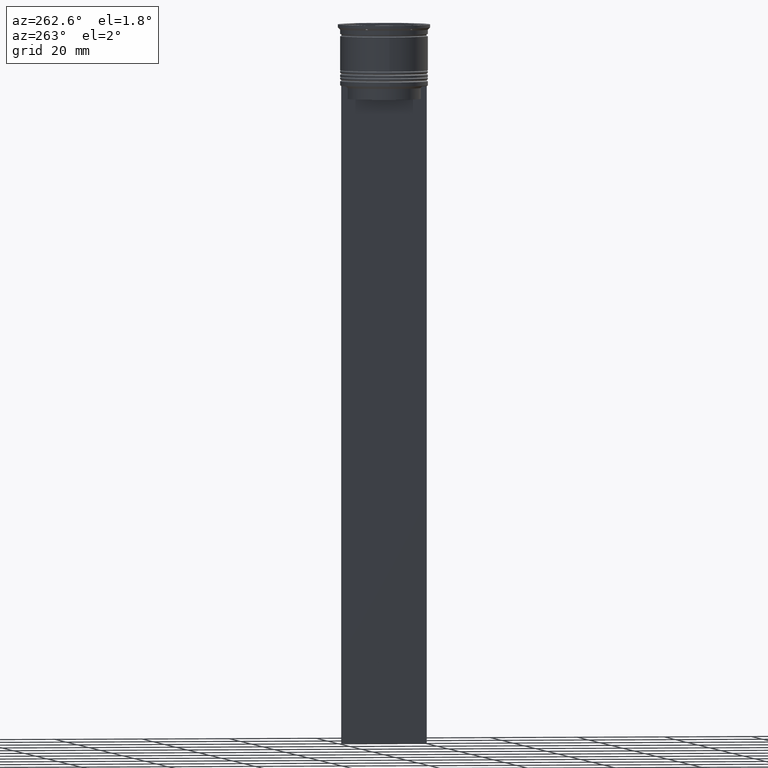
[diagram: clean part render]
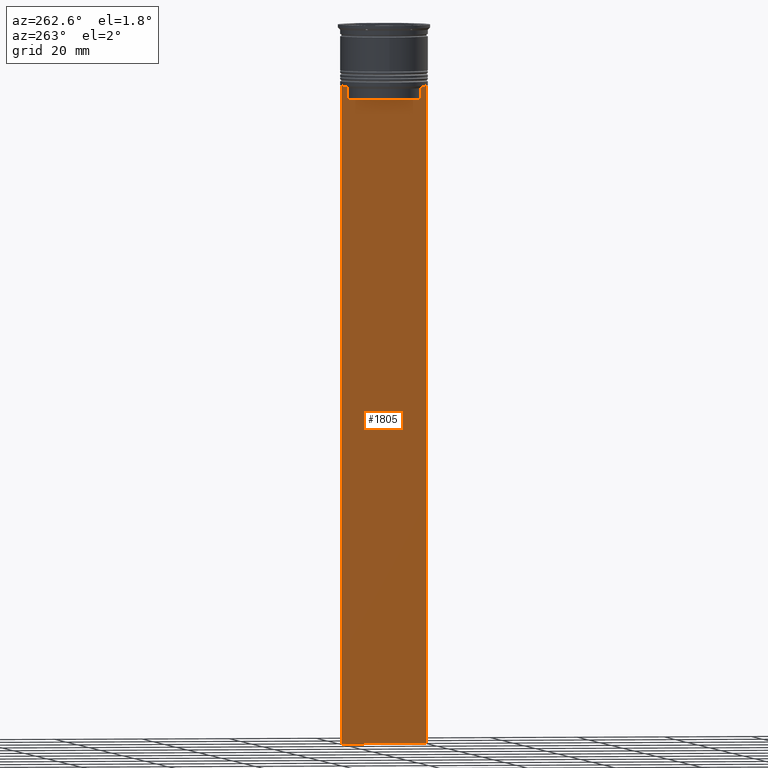
[diagram: same view with one face highlighted and labeled with its STEP entity id]
A machine part, auxiliary view. The second image highlights one B-rep face of the part: STEP entity #1805.
In plain terms, the highlighted planar face has unit normal (-1, 0, 0).
Its self-contained STEP definition (entity closure, byte-faithful):
#22 = VECTOR ( 'NONE', #1613, 1000.000000000000000 ) ;
#34 = VERTEX_POINT ( 'NONE', #1187 ) ;
#68 = FACE_OUTER_BOUND ( 'NONE', #2414, .T. ) ;
#70 = VECTOR ( 'NONE', #1331, 1000.000000000000000 ) ;
#124 = ORIENTED_EDGE ( 'NONE', *, *, #460, .F. ) ;
#164 = EDGE_CURVE ( 'NONE', #973, #478, #1238, .T. ) ;
#175 = EDGE_CURVE ( 'NONE', #34, #381, #829, .T. ) ;
#180 = VERTEX_POINT ( 'NONE', #2435 ) ;
#204 = CARTESIAN_POINT ( 'NONE',  ( -0.5000000000000001110, 9.750000000000001776, 5.525624189766635830 ) ) ;
#215 = EDGE_CURVE ( 'NONE', #381, #1622, #794, .T. ) ;
#239 = PLANE ( 'NONE',  #903 ) ;
#244 = CARTESIAN_POINT ( 'NONE',  ( -0.5000000000000001110, 8.385105843100616241, 0.000000000000000000 ) ) ;
#284 = CARTESIAN_POINT ( 'NONE',  ( -0.5000000000000001110, -8.385105843100616241, -14.50000000000000000 ) ) ;
#321 = CARTESIAN_POINT ( 'NONE',  ( -0.5000000000000001110, -8.385105843100616241, -17.00000000000000000 ) ) ;
#324 = CARTESIAN_POINT ( 'NONE',  ( -0.5000000000000001110, 8.552060201981381837, -14.33334167021640226 ) ) ;
#357 = VECTOR ( 'NONE', #1193, 1000.000000000000000 ) ;
#381 = VERTEX_POINT ( 'NONE', #2165 ) ;
#421 = DIRECTION ( 'NONE',  ( 0.000000000000000000, -1.000000000000000000, 0.000000000000000000 ) ) ;
#432 = B_SPLINE_CURVE_WITH_KNOTS ( 'NONE', 3,
 ( #669, #2482, #1674, #1497 ),
 .UNSPECIFIED., .F., .F.,
 ( 4, 4 ),
 ( 0.03898465126933130243, 0.03969388910599658260 ),
 .UNSPECIFIED. ) ;
#451 = CARTESIAN_POINT ( 'NONE',  ( -0.5000000000000001110, -9.749999999999998224, 5.525624189766635830 ) ) ;
#460 = EDGE_CURVE ( 'NONE', #478, #637, #1398, .T. ) ;
#478 = VERTEX_POINT ( 'NONE', #2396 ) ;
#512 = EDGE_CURVE ( 'NONE', #682, #835, #800, .T. ) ;
#619 = DIRECTION ( 'NONE',  ( 0.000000000000000000, 0.000000000000000000, -1.000000000000000000 ) ) ;
#637 = VERTEX_POINT ( 'NONE', #885 ) ;
#669 = CARTESIAN_POINT ( 'NONE',  ( -0.5000000000000001110, -8.385105843100616241, -14.50000000000000000 ) ) ;
#682 = VERTEX_POINT ( 'NONE', #2278 ) ;
#695 = CARTESIAN_POINT ( 'NONE',  ( -0.5000000000000001110, 8.385105843100616241, -14.50000000000000000 ) ) ;
#759 = ORIENTED_EDGE ( 'NONE', *, *, #1806, .F. ) ;
#789 = DIRECTION ( 'NONE',  ( 0.000000000000000000, 0.000000000000000000, -1.000000000000000000 ) ) ;
#794 = B_SPLINE_CURVE_WITH_KNOTS ( 'NONE', 3,
 ( #2459, #866, #324, #1900 ),
 .UNSPECIFIED., .F., .F.,
 ( 4, 4 ),
 ( 0.01511546479386908018, 0.01582316445439079997 ),
 .UNSPECIFIED. ) ;
#800 = LINE ( 'NONE', #1809, #1328 ) ;
#814 = CARTESIAN_POINT ( 'NONE',  ( -0.5000000000000001110, -9.749999999999998224, -14.00000000000000178 ) ) ;
#829 = LINE ( 'NONE', #814, #2101 ) ;
#835 = VERTEX_POINT ( 'NONE', #321 ) ;
#866 = CARTESIAN_POINT ( 'NONE',  ( -0.5000000000000001110, 8.719005771582351016, -14.16667453442324742 ) ) ;
#875 = ORIENTED_EDGE ( 'NONE', *, *, #512, .F. ) ;
#883 = EDGE_CURVE ( 'NONE', #835, #2405, #2551, .T. ) ;
#885 = CARTESIAN_POINT ( 'NONE',  ( -0.5000000000000001110, -9.749999999999998224, -163.9999999999999716 ) ) ;
#903 = AXIS2_PLACEMENT_3D ( 'NONE', #451, #1430, #1440 ) ;
#959 = ORIENTED_EDGE ( 'NONE', *, *, #215, .F. ) ;
#973 = VERTEX_POINT ( 'NONE', #993 ) ;
#993 = CARTESIAN_POINT ( 'NONE',  ( -0.5000000000000001110, -8.885943956609230199, -14.00000000000000178 ) ) ;
#1043 = DIRECTION ( 'NONE',  ( 0.000000000000000000, -1.000000000000000000, 0.000000000000000000 ) ) ;
#1053 = EDGE_CURVE ( 'NONE', #1622, #682, #1249, .T. ) ;
#1086 = EDGE_CURVE ( 'NONE', #2405, #973, #432, .T. ) ;
#1166 = ORIENTED_EDGE ( 'NONE', *, *, #175, .F. ) ;
#1187 = CARTESIAN_POINT ( 'NONE',  ( -0.5000000000000001110, 9.749999999999998224, -14.00000000000000178 ) ) ;
#1190 = LINE ( 'NONE', #204, #1911 ) ;
#1193 = DIRECTION ( 'NONE',  ( 0.000000000000000000, 0.000000000000000000, -1.000000000000000000 ) ) ;
#1218 = ORIENTED_EDGE ( 'NONE', *, *, #1053, .F. ) ;
#1238 = LINE ( 'NONE', #1664, #1782 ) ;
#1249 = LINE ( 'NONE', #244, #357 ) ;
#1328 = VECTOR ( 'NONE', #421, 1000.000000000000000 ) ;
#1331 = DIRECTION ( 'NONE',  ( -0.000000000000000000, -0.000000000000000000, 1.000000000000000000 ) ) ;
#1398 = LINE ( 'NONE', #2574, #2562 ) ;
#1420 = EDGE_CURVE ( 'NONE', #34, #180, #1190, .T. ) ;
#1430 = DIRECTION ( 'NONE',  ( -1.000000000000000000, 0.000000000000000000, 0.000000000000000000 ) ) ;
#1440 = DIRECTION ( 'NONE',  ( 0.000000000000000000, 0.000000000000000000, 1.000000000000000000 ) ) ;
#1497 = CARTESIAN_POINT ( 'NONE',  ( -0.5000000000000001110, -8.885943956609230199, -14.00000000000000178 ) ) ;
#1521 = ORIENTED_EDGE ( 'NONE', *, *, #164, .F. ) ;
#1546 = ORIENTED_EDGE ( 'NONE', *, *, #1420, .T. ) ;
#1613 = DIRECTION ( 'NONE',  ( 0.000000000000000000, 1.000000000000000000, 0.000000000000000000 ) ) ;
#1622 = VERTEX_POINT ( 'NONE', #695 ) ;
#1647 = CARTESIAN_POINT ( 'NONE',  ( -0.5000000000000001110, -9.749999999999998224, -163.9999999999999716 ) ) ;
#1664 = CARTESIAN_POINT ( 'NONE',  ( -0.5000000000000001110, -9.749999999999998224, -14.00000000000000178 ) ) ;
#1674 = CARTESIAN_POINT ( 'NONE',  ( -0.5000000000000001110, -8.719005764482790966, -14.16667454151159689 ) ) ;
#1782 = VECTOR ( 'NONE', #1823, 1000.000000000000000 ) ;
#1805 = ADVANCED_FACE ( 'NONE', ( #68 ), #239, .T. ) ;
#1806 = EDGE_CURVE ( 'NONE', #637, #180, #2205, .T. ) ;
#1809 = CARTESIAN_POINT ( 'NONE',  ( -0.5000000000000001110, 8.400000000000003908, -17.00000000000000000 ) ) ;
#1823 = DIRECTION ( 'NONE',  ( 0.000000000000000000, -1.000000000000000000, 0.000000000000000000 ) ) ;
#1900 = CARTESIAN_POINT ( 'NONE',  ( -0.5000000000000001110, 8.385105843100616241, -14.50000000000000000 ) ) ;
#1911 = VECTOR ( 'NONE', #619, 1000.000000000000000 ) ;
#1933 = ORIENTED_EDGE ( 'NONE', *, *, #883, .F. ) ;
#1948 = CARTESIAN_POINT ( 'NONE',  ( -0.5000000000000001110, -8.385105843100616241, 0.000000000000000000 ) ) ;
#2101 = VECTOR ( 'NONE', #1043, 1000.000000000000000 ) ;
#2165 = CARTESIAN_POINT ( 'NONE',  ( -0.5000000000000001110, 8.885943956609230199, -14.00000000000000178 ) ) ;
#2205 = LINE ( 'NONE', #1647, #22 ) ;
#2278 = CARTESIAN_POINT ( 'NONE',  ( -0.5000000000000001110, 8.385105843100616241, -17.00000000000000000 ) ) ;
#2396 = CARTESIAN_POINT ( 'NONE',  ( -0.5000000000000001110, -9.749999999999998224, -14.00000000000000178 ) ) ;
#2405 = VERTEX_POINT ( 'NONE', #284 ) ;
#2414 = EDGE_LOOP ( 'NONE', ( #959, #1166, #1546, #759, #124, #1521, #2583, #1933, #875, #1218 ) ) ;
#2435 = CARTESIAN_POINT ( 'NONE',  ( -0.5000000000000001110, 9.750000000000001776, -163.9999999999999716 ) ) ;
#2459 = CARTESIAN_POINT ( 'NONE',  ( -0.5000000000000001110, 8.885943956609230199, -14.00000000000000178 ) ) ;
#2482 = CARTESIAN_POINT ( 'NONE',  ( -0.5000000000000001110, -8.552060194457773434, -14.33334167772667023 ) ) ;
#2551 = LINE ( 'NONE', #1948, #70 ) ;
#2562 = VECTOR ( 'NONE', #789, 1000.000000000000000 ) ;
#2574 = CARTESIAN_POINT ( 'NONE',  ( -0.5000000000000001110, -9.749999999999998224, 5.525624189766635830 ) ) ;
#2583 = ORIENTED_EDGE ( 'NONE', *, *, #1086, .F. ) ;